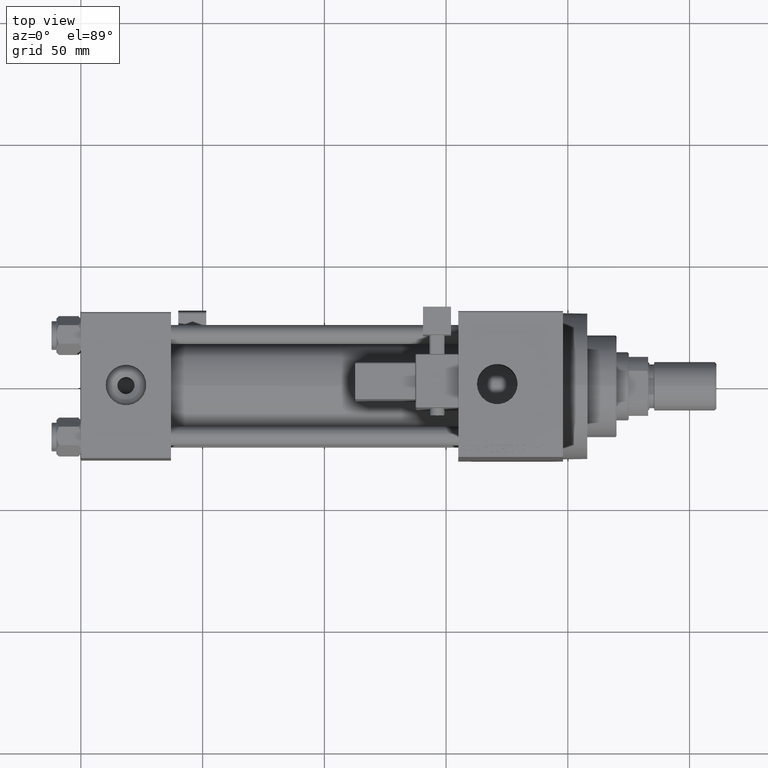
[diagram: clean part render]
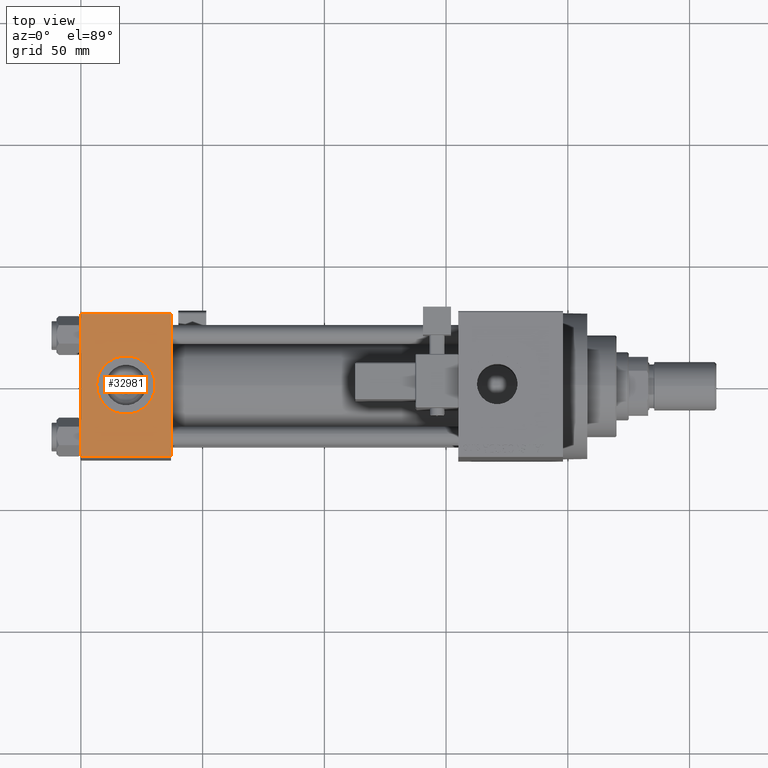
[diagram: same view with one face highlighted and labeled with its STEP entity id]
A machine part, top view. The second image highlights one B-rep face of the part: STEP entity #32981.
In plain terms, the highlighted planar face has unit normal (0, 0, -1).
Its self-contained STEP definition (entity closure, byte-faithful):
#1131 = CARTESIAN_POINT ( 'NONE',  ( 0.000000000000000000, 29.99999999999999289, 30.00000000000000000 ) ) ;
#2884 = DIRECTION ( 'NONE',  ( -1.000000000000000000, 0.000000000000000000, 0.000000000000000000 ) ) ;
#3826 = CARTESIAN_POINT ( 'NONE',  ( 30.50000000000000000, -3.469446951953614978E-15, 29.99999999999999645 ) ) ;
#4129 = EDGE_CURVE ( 'NONE', #15420, #5118, #37373, .T. ) ;
#4363 = CARTESIAN_POINT ( 'NONE',  ( 37.00000000000000000, 29.99999999999999289, 30.00000000000000000 ) ) ;
#5090 = VECTOR ( 'NONE', #13411, 1000.000000000000000 ) ;
#5118 = VERTEX_POINT ( 'NONE', #16355 ) ;
#5656 = LINE ( 'NONE', #1131, #43793 ) ;
#8055 = LINE ( 'NONE', #38800, #13490 ) ;
#8326 = VECTOR ( 'NONE', #35468, 1000.000000000000000 ) ;
#8878 = CIRCLE ( 'NONE', #47554, 12.00000000000000000 ) ;
#8887 = FACE_OUTER_BOUND ( 'NONE', #21998, .T. ) ;
#10793 = CARTESIAN_POINT ( 'NONE',  ( 18.50000000000000000, -3.469446951953614978E-15, 29.99999999999999645 ) ) ;
#13411 = DIRECTION ( 'NONE',  ( 1.000000000000000000, 0.000000000000000000, 0.000000000000000000 ) ) ;
#13490 = VECTOR ( 'NONE', #2884, 1000.000000000000000 ) ;
#14372 = DIRECTION ( 'NONE',  ( 0.000000000000000000, 0.000000000000000000, 1.000000000000000000 ) ) ;
#15420 = VERTEX_POINT ( 'NONE', #3826 ) ;
#16355 = CARTESIAN_POINT ( 'NONE',  ( 6.499999999999997335, -1.999870792976790833E-15, 29.99999999999999645 ) ) ;
#16495 = DIRECTION ( 'NONE',  ( 0.000000000000000000, -1.000000000000000000, -1.156482317317871725E-16 ) ) ;
#18022 = EDGE_CURVE ( 'NONE', #39088, #23595, #8055, .T. ) ;
#18767 = AXIS2_PLACEMENT_3D ( 'NONE', #4363, #35095, #46981 ) ;
#19959 = PLANE ( 'NONE',  #18767 ) ;
#20081 = CARTESIAN_POINT ( 'NONE',  ( 37.00000000000000000, 29.99999999999999289, 30.00000000000000000 ) ) ;
#20739 = CARTESIAN_POINT ( 'NONE',  ( 37.00000000000000000, -29.49999999999998579, 29.99999999999999289 ) ) ;
#21368 = DIRECTION ( 'NONE',  ( 0.000000000000000000, 0.000000000000000000, 1.000000000000000000 ) ) ;
#21456 = VERTEX_POINT ( 'NONE', #20739 ) ;
#21998 = EDGE_LOOP ( 'NONE', ( #22901, #27507, #45812, #28159 ) ) ;
#22901 = ORIENTED_EDGE ( 'NONE', *, *, #35358, .T. ) ;
#23595 = VERTEX_POINT ( 'NONE', #32796 ) ;
#26003 = VERTEX_POINT ( 'NONE', #40182 ) ;
#26190 = EDGE_LOOP ( 'NONE', ( #35511, #38179 ) ) ;
#26907 = EDGE_CURVE ( 'NONE', #5118, #15420, #8878, .T. ) ;
#27507 = ORIENTED_EDGE ( 'NONE', *, *, #36790, .T. ) ;
#28159 = ORIENTED_EDGE ( 'NONE', *, *, #18022, .T. ) ;
#29683 = DIRECTION ( 'NONE',  ( 1.000000000000000000, 0.000000000000000000, 0.000000000000000000 ) ) ;
#29729 = DIRECTION ( 'NONE',  ( 1.000000000000000000, 0.000000000000000000, 0.000000000000000000 ) ) ;
#32174 = LINE ( 'NONE', #20081, #8326 ) ;
#32566 = CARTESIAN_POINT ( 'NONE',  ( 37.00000000000000000, -29.50000000000000000, 29.99999999999999289 ) ) ;
#32796 = CARTESIAN_POINT ( 'NONE',  ( 0.000000000000000000, 29.49999999999999289, 30.00000000000000000 ) ) ;
#32981 = ADVANCED_FACE ( 'NONE', ( #39132, #8887 ), #19959, .F. ) ;
#35095 = DIRECTION ( 'NONE',  ( 0.000000000000000000, 1.156482317317871725E-16, -1.000000000000000000 ) ) ;
#35358 = EDGE_CURVE ( 'NONE', #23595, #26003, #5656, .T. ) ;
#35468 = DIRECTION ( 'NONE',  ( 0.000000000000000000, -1.000000000000000000, -1.156482317317871725E-16 ) ) ;
#35511 = ORIENTED_EDGE ( 'NONE', *, *, #4129, .F. ) ;
#36545 = EDGE_CURVE ( 'NONE', #39088, #21456, #32174, .T. ) ;
#36790 = EDGE_CURVE ( 'NONE', #26003, #21456, #47995, .T. ) ;
#37373 = CIRCLE ( 'NONE', #43817, 12.00000000000000000 ) ;
#38179 = ORIENTED_EDGE ( 'NONE', *, *, #26907, .F. ) ;
#38800 = CARTESIAN_POINT ( 'NONE',  ( 0.000000000000000000, 29.49999999999999289, 30.00000000000000000 ) ) ;
#39088 = VERTEX_POINT ( 'NONE', #41526 ) ;
#39132 = FACE_BOUND ( 'NONE', #26190, .T. ) ;
#40182 = CARTESIAN_POINT ( 'NONE',  ( 0.000000000000000000, -29.49999999999998579, 29.99999999999999289 ) ) ;
#41526 = CARTESIAN_POINT ( 'NONE',  ( 37.00000000000000000, 29.49999999999999289, 30.00000000000000000 ) ) ;
#43793 = VECTOR ( 'NONE', #16495, 1000.000000000000000 ) ;
#43817 = AXIS2_PLACEMENT_3D ( 'NONE', #10793, #21368, #29683 ) ;
#45812 = ORIENTED_EDGE ( 'NONE', *, *, #36545, .F. ) ;
#46981 = DIRECTION ( 'NONE',  ( 0.000000000000000000, 1.000000000000000000, 1.156482317317871725E-16 ) ) ;
#47554 = AXIS2_PLACEMENT_3D ( 'NONE', #48956, #14372, #29729 ) ;
#47995 = LINE ( 'NONE', #32566, #5090 ) ;
#48956 = CARTESIAN_POINT ( 'NONE',  ( 18.50000000000000000, -3.469446951953614978E-15, 29.99999999999999645 ) ) ;